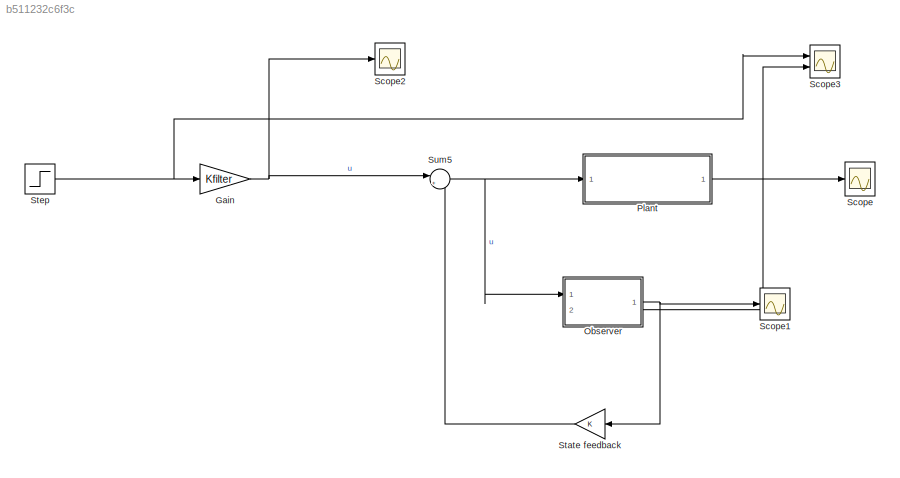
MODEL slx_b511232c6f3c
KIND model
CONFIG AbsTol = auto
CONFIG EnableMultiTasking = off
CONFIG FixedStep = auto
CONFIG MaxStep = auto
CONFIG MinStep = auto
CONFIG RelTol = 1e-3
CONFIG SampleTimeConstraint = Unconstrained
CONFIG SolverName = VariableStepAuto
CONFIG StartTime = 0.0
CONFIG StopTime = 200
BLOCK [Gain] Gain
  Gain = Kfilter
  Multiplication = Matrix(K*u)
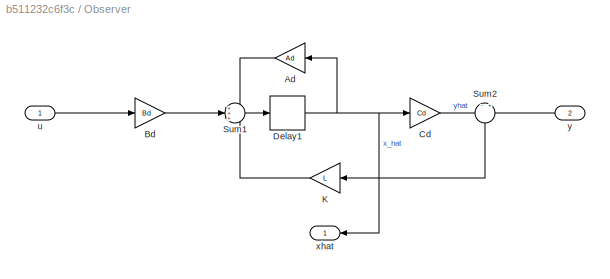
BLOCK [SubSystem] Observer
  PortSchema = {"entries":[{"content":{"sides":[{"content":{"connectorIds":["In1"]},"type":"ConnectorPlacement.EquallySpacedRectSide","uuid":"f4ae0740-89bf-4035-96e8-743ce40d8411"},{"content":{"connectorIds":["Out1"],"side":"RIGHT"},"type":"ConnectorPlacement.EquallySpacedRectSide","uuid":"278b155b-d02c-463a-b092-758e224a1d04"},{"content":{"connectorIds":["In2"],"side":"TOP"},"type":"ConnectorPlacement.EquallySp...<+245ch>
  Ports = [2, 1]
  RequestExecContextInheritance = off
BLOCK [Gain] Observer/Ad
  Gain = Ad
  Multiplication = Matrix(K*u)
  NameLocation = top
BLOCK [Gain] Observer/Bd
  Gain = Bd
  Multiplication = Matrix(K*u)
BLOCK [Gain] Observer/Cd
  Gain = Cd
  Multiplication = Matrix(K*u)
BLOCK [Delay] Observer/Delay1
  DelayLength = 1
  InputPortMap = u0
  Ports = [1, 1]
BLOCK [Gain] Observer/K
  Gain = L
  Multiplication = Matrix(K*u)
  NameLocation = top
BLOCK [Sum] Observer/Sum1
  Inputs = +++
  Ports = [3, 1]
BLOCK [Sum] Observer/Sum2
  Inputs = -|+
  NameLocation = left
  Ports = [2, 1]
BLOCK [Inport] Observer/u
BLOCK [Outport] Observer/xhat
  NameLocation = top
BLOCK [Inport] Observer/y
  NameLocation = top
  Port = 2
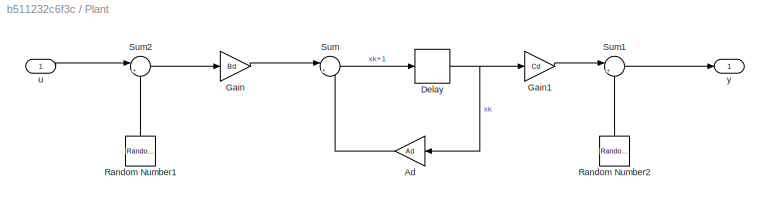
BLOCK [SubSystem] Plant
  Ports = [1, 1]
  RequestExecContextInheritance = off
BLOCK [Gain] Plant/Ad
  Gain = Ad
  Multiplication = Matrix(K*u)
  NameLocation = top
BLOCK [Delay] Plant/Delay
  DelayLength = 1
  InitialCondition = 0
  InputPortMap = u0
  Ports = [1, 1]
BLOCK [Gain] Plant/Gain
  Gain = Bd
  Multiplication = Matrix(K*u)
BLOCK [Gain] Plant/Gain1
  Gain = Cd
  Multiplication = Matrix(K*u)
BLOCK [RandomNumber] Plant/Random Number1
  NameLocation = right
  SampleTime = Ts
  Variance = [var_va,var_Te]
BLOCK [RandomNumber] Plant/Random Number2
  NameLocation = right
  SampleTime = Ts
  Variance = [var_v1,var_v2]
BLOCK [Sum] Plant/Sum
  Inputs = |++
  Ports = [2, 1]
BLOCK [Sum] Plant/Sum1
  Inputs = |++
  Ports = [2, 1]
BLOCK [Sum] Plant/Sum2
  Inputs = |++
  Ports = [2, 1]
BLOCK [Inport] Plant/u
BLOCK [Outport] Plant/y
BLOCK [Scope] Scope
  Floating = off
  NumInputPorts = 1
  Ports = [1]
  ScopeSpecificationString = Simulink.scopes.TimeScopeBlockCfg('CurrentConfiguration', extmgr.ConfigurationSet(extmgr.Configuration('Core','General UI',true),extmgr.Configuration('Core','Source UI',true),extmgr.Configuration('Sources','WiredSimulink',true),extmgr.Configuration('Visuals','Time Domain',true,'SerializedDisplays',{struct('MinYLimReal','-257745.69468','MaxYLimReal','700774.3542','YLabelReal','','MinYLimMag','    0...<+1404ch>
BLOCK [Scope] Scope1
  Floating = off
  NumInputPorts = 1
  Ports = [1]
  ScopeSpecificationString = Simulink.scopes.TimeScopeBlockCfg('CurrentConfiguration', extmgr.ConfigurationSet(extmgr.Configuration('Core','General UI',true),extmgr.Configuration('Core','Source UI',true),extmgr.Configuration('Sources','WiredSimulink',true,'DataLoggingVariableName','ScopeData1'),extmgr.Configuration('Visuals','Time Domain',true,'SerializedDisplays',{struct('MinYLimReal','-5328323.10153','MaxYLimReal','3263826....<+1494ch>
BLOCK [Scope] Scope2
  Floating = off
  NumInputPorts = 1
  Ports = [1]
  ScopeSpecificationString = Simulink.scopes.TimeScopeBlockCfg('CurrentConfiguration', extmgr.ConfigurationSet(extmgr.Configuration('Core','General UI',true),extmgr.Configuration('Core','Source UI',true),extmgr.Configuration('Sources','WiredSimulink',true,'DataLoggingVariableName','ScopeData1'),extmgr.Configuration('Visuals','Time Domain',true,'SerializedDisplays',{struct('MinYLimReal','-157.75','MaxYLimReal','19.75','YLabelR...<+1362ch>
BLOCK [Scope] Scope3
  Floating = off
  NumInputPorts = 2
  Ports = [2]
  ScopeSpecificationString = Simulink.scopes.TimeScopeBlockCfg('CurrentConfiguration', extmgr.ConfigurationSet(extmgr.Configuration('Core','General UI',true),extmgr.Configuration('Core','Source UI',true),extmgr.Configuration('Sources','WiredSimulink',true,'DataLoggingVariableName','ScopeData2'),extmgr.Configuration('Visuals','Time Domain',true,'SerializedDisplays',{struct('MinYLimReal','-146210.04424','MaxYLimReal','66553.168...<+1468ch>
BLOCK [Gain] State feedback
  Gain = K
  Multiplication = Matrix(K*u)
  NameLocation = top
BLOCK [Step] Step
  After = 100
  Before = 10
  SampleTime = 0
  Time = 5
BLOCK [Sum] Sum5
  Inputs = |+-
  Ports = [2, 1]
NET Gain:1 -> Scope2:1, Sum5:1
LINE Observer/Ad:1 -> Observer/Sum1:1
LINE Observer/Bd:1 -> Observer/Sum1:2
LINE Observer/Cd:1 -> Observer/Sum2:1
NET Observer/Delay1:1 -> Observer/Ad:1, Observer/Cd:1, Observer/xhat:1
LINE Observer/K:1 -> Observer/Sum1:3
LINE Observer/Sum1:1 -> Observer/Delay1:1
LINE Observer/Sum2:1 -> Observer/K:1
LINE Observer/u:1 -> Observer/Bd:1
LINE Observer/y:1 -> Observer/Sum2:2
NET Observer:1 -> Scope1:1, State feedback:1
LINE Plant/Ad:1 -> Plant/Sum:2
NET Plant/Delay:1 -> Plant/Ad:1, Plant/Gain1:1
LINE Plant/Gain1:1 -> Plant/Sum1:1
LINE Plant/Gain:1 -> Plant/Sum:1
LINE Plant/Random Number1:1 -> Plant/Sum2:2
LINE Plant/Random Number2:1 -> Plant/Sum1:2
LINE Plant/Sum1:1 -> Plant/y:1
LINE Plant/Sum2:1 -> Plant/Gain:1
LINE Plant/Sum:1 -> Plant/Delay:1
LINE Plant/u:1 -> Plant/Sum2:1
NET Plant:1 -> Observer:2, Scope3:2, Scope:1
LINE State feedback:1 -> Sum5:2
NET Step:1 -> Gain:1, Scope3:1
NET Sum5:1 -> Observer:1, Plant:1
note: NET lines group one-source signal fan-out (src -> all destinations, sorted); 1:1 wires keep LINE
